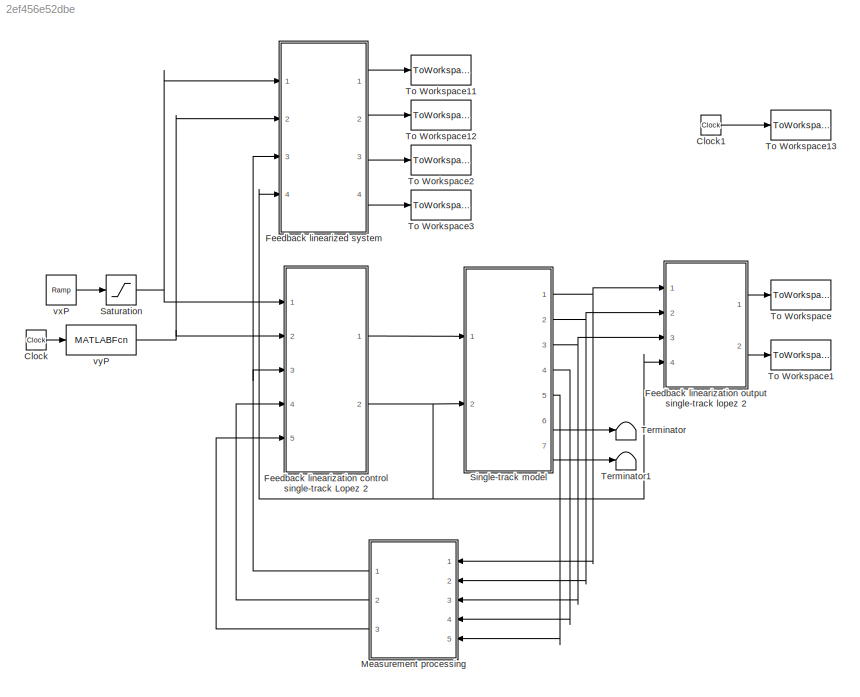
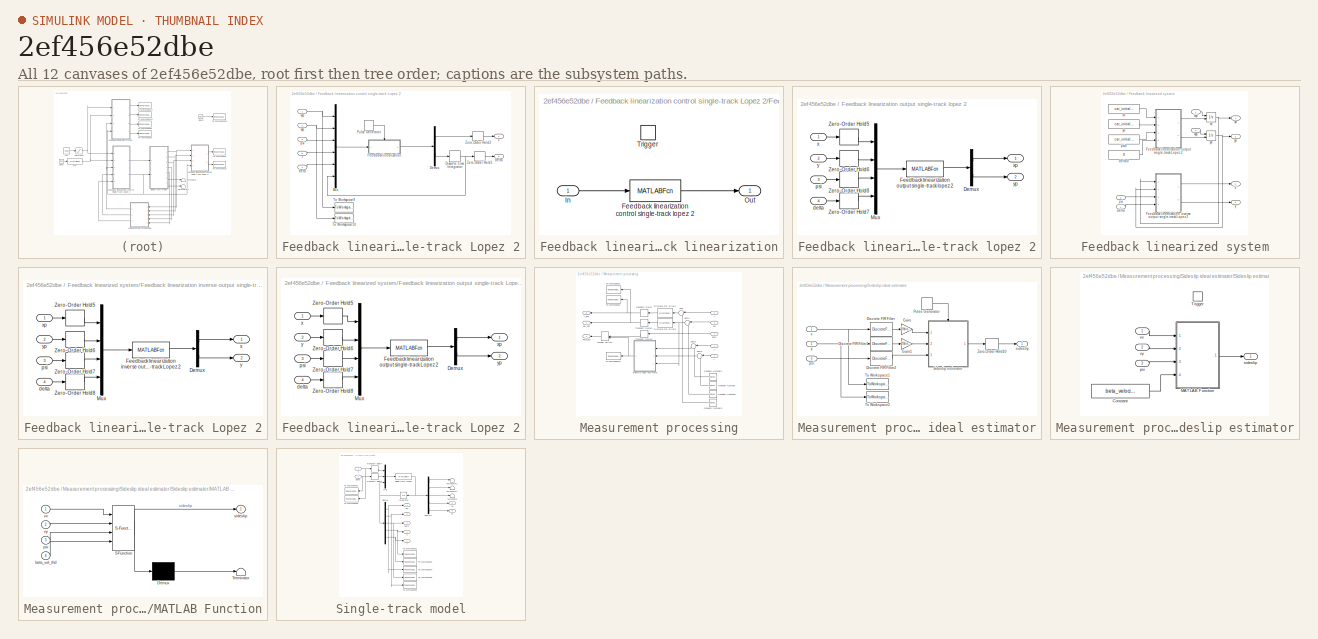
[diagram: thumbnail index - all 12 canvases of the model, root first then tree order]
MODEL slx_2ef456e52dbe
KIND model
CONFIG AbsTol = auto
CONFIG EnableMultiTasking = off
CONFIG FixedStep = auto
CONFIG MaxStep = auto
CONFIG MinStep = auto
CONFIG RelTol = 1e-3
CONFIG SampleTimeConstraint = Unconstrained
CONFIG Solver = VariableStepAuto
CONFIG SolverName = VariableStepAuto
CONFIG StartTime = 0.0
CONFIG StopTime = 10.0
BLOCK [Clock] Clock
  Decimation = 1
BLOCK [Clock] Clock1
BLOCK [SubSystem] Feedback linearization control single-track Lopez 2
  Ports = [5, 2]
  RequestExecContextInheritance = off
BLOCK [Demux] Feedback linearization control single-track Lopez 2/Demux
  DisplayOption = bar
  Outputs = 2
  Ports = [1, 2]
BLOCK [DiscreteIntegrator] Feedback linearization control single-track Lopez 2/Discrete-Time Integrator
  ICPrevOutput = DiscIntNeverNeededParam
  ICPrevScaledInput = DiscIntNeverNeededParam
  InitialConditionSetting = Auto
  Ports = [1, 1]
  SampleTime = Ts
BLOCK [SubSystem] Feedback linearization control single-track Lopez 2/Feedback linearization
  Ports = [1, 1, 0, 1]
  RequestExecContextInheritance = off
  TreatAsAtomicUnit = on
BLOCK [MATLABFcn] Feedback linearization control single-track Lopez 2/Feedback linearization/Feedback linearization control single-track lopez 2
  MATLABFcn = fblin_control_singletrack_lopez2(u(1),u(2),u(3),u(4),u(5),u(6),P_dist,car_parameters)
  OutputDimensions = 2
  Ports = [1, 1]
BLOCK [Inport] Feedback linearization control single-track Lopez 2/Feedback linearization/In
  IconDisplay = Port number
BLOCK [Outport] Feedback linearization control single-track Lopez 2/Feedback linearization/Out
  IconDisplay = Port number
BLOCK [TriggerPort] Feedback linearization control single-track Lopez 2/Feedback linearization/Trigger
  Ports = []
  StatesWhenEnabling = held
  VariantControl = Variant
BLOCK [Mux] Feedback linearization control single-track Lopez 2/Mux
  DisplayOption = bar
  Inputs = 6
  Ports = [6, 1]
BLOCK [DiscretePulseGenerator] Feedback linearization control single-track Lopez 2/Pulse Generator
  Period = Ts
  Ports = [0, 1]
  PulseType = Time based
  PulseWidth = 50
BLOCK [ToWorkspace] Feedback linearization control single-track Lopez 2/To Workspace10
  FixptAsFi = on
  MaxDataPoints = inf
  Ports = [1]
  SampleTime = meas_Ts
  Save2DSignal = 2-D array (concatenate along first dimension)
  VariableName = vyP
BLOCK [ToWorkspace] Feedback linearization control single-track Lopez 2/To Workspace9
  FixptAsFi = on
  MaxDataPoints = inf
  Ports = [1]
  SampleTime = meas_Ts
  Save2DSignal = 2-D array (concatenate along first dimension)
  VariableName = vxP
BLOCK [ZeroOrderHold] Feedback linearization control single-track Lopez 2/Zero-Order Hold1
  SampleTime = Ts
BLOCK [ZeroOrderHold] Feedback linearization control single-track Lopez 2/Zero-Order Hold3
  SampleTime = Ts
BLOCK [Inport] Feedback linearization control single-track Lopez 2/beta
  IconDisplay = Port number
  Port = 4
BLOCK [Outport] Feedback linearization control single-track Lopez 2/delta
  IconDisplay = Port number
  Port = 2
BLOCK [Inport] Feedback linearization control single-track Lopez 2/psi
  IconDisplay = Port number
  Port = 3
BLOCK [Inport] Feedback linearization control single-track Lopez 2/r
  IconDisplay = Port number
  Port = 5
BLOCK [Outport] Feedback linearization control single-track Lopez 2/v
  IconDisplay = Port number
BLOCK [Inport] Feedback linearization control single-track Lopez 2/vxp
  IconDisplay = Port number
BLOCK [Inport] Feedback linearization control single-track Lopez 2/vyp
  IconDisplay = Port number
  Port = 2
BLOCK [SubSystem] Feedback linearization output single-track lopez 2
  Ports = [4, 2]
  RequestExecContextInheritance = off
BLOCK [Demux] Feedback linearization output single-track lopez 2/Demux
  DisplayOption = bar
  Outputs = 2
  Ports = [1, 2]
BLOCK [MATLABFcn] Feedback linearization output single-track lopez 2/Feedback linearization output single-track lopez 2
  MATLABFcn = fblin_output_singletrack_lopez2(u(1),u(2),u(3),u(4),P_dist,car_parameters)
  OutputDimensions = 2
  Ports = [1, 1]
BLOCK [Mux] Feedback linearization output single-track lopez 2/Mux
  DisplayOption = bar
  Ports = [4, 1]
BLOCK [ZeroOrderHold] Feedback linearization output single-track lopez 2/Zero-Order Hold5
  SampleTime = fblin_Ts
BLOCK [ZeroOrderHold] Feedback linearization output single-track lopez 2/Zero-Order Hold6
  SampleTime = fblin_Ts
BLOCK [ZeroOrderHold] Feedback linearization output single-track lopez 2/Zero-Order Hold7
  SampleTime = fblin_Ts
BLOCK [ZeroOrderHold] Feedback linearization output single-track lopez 2/Zero-Order Hold8
  SampleTime = fblin_Ts
BLOCK [Inport] Feedback linearization output single-track lopez 2/delta
  IconDisplay = Port number
  Port = 4
BLOCK [Inport] Feedback linearization output single-track lopez 2/psi
  IconDisplay = Port number
  Port = 3
BLOCK [Inport] Feedback linearization output single-track lopez 2/x
  IconDisplay = Port number
BLOCK [Outport] Feedback linearization output single-track lopez 2/xp
  IconDisplay = Port number
BLOCK [Inport] Feedback linearization output single-track lopez 2/y
  IconDisplay = Port number
  Port = 2
BLOCK [Outport] Feedback linearization output single-track lopez 2/yp
  IconDisplay = Port number
  Port = 2
BLOCK [SubSystem] Feedback linearized system
  Ports = [4, 4]
  RequestExecContextInheritance = off
BLOCK [Integrator] Feedback linearized system/ xp 
  InitialCondition = car_state0(4)
  InitialConditionSource = external
  Ports = [2, 1]
BLOCK [Integrator] Feedback linearized system/ yp 
  InitialCondition = car_state0(5)
  InitialConditionSource = external
  Ports = [2, 1]
BLOCK [SubSystem] Feedback linearized system/Feedback linearization inverse output single-track Lopez 2
  Ports = [4, 2]
  RequestExecContextInheritance = off
BLOCK [Demux] Feedback linearized system/Feedback linearization inverse output single-track Lopez 2/Demux
  DisplayOption = bar
  Outputs = 2
  Ports = [1, 2]
BLOCK [MATLABFcn] Feedback linearized system/Feedback linearization inverse output single-track Lopez 2/Feedback linearization inverse output single-track Lopez 2
  MATLABFcn = fblin_outputInverse_singletrack_lopez2(u(1),u(2),u(3),u(4),P_dist,car_parameters)
  OutputDimensions = 2
  Ports = [1, 1]
BLOCK [Mux] Feedback linearized system/Feedback linearization inverse output single-track Lopez 2/Mux
  DisplayOption = bar
  Ports = [4, 1]
BLOCK [ZeroOrderHold] Feedback linearized system/Feedback linearization inverse output single-track Lopez 2/Zero-Order Hold5
  SampleTime = fblin_Ts
BLOCK [ZeroOrderHold] Feedback linearized system/Feedback linearization inverse output single-track Lopez 2/Zero-Order Hold6
  SampleTime = fblin_Ts
BLOCK [ZeroOrderHold] Feedback linearized system/Feedback linearization inverse output single-track Lopez 2/Zero-Order Hold7
  SampleTime = fblin_Ts
BLOCK [ZeroOrderHold] Feedback linearized system/Feedback linearization inverse output single-track Lopez 2/Zero-Order Hold8
  SampleTime = fblin_Ts
BLOCK [Inport] Feedback linearized system/Feedback linearization inverse output single-track Lopez 2/delta
  IconDisplay = Port number
  Port = 4
BLOCK [Inport] Feedback linearized system/Feedback linearization inverse output single-track Lopez 2/psi
  IconDisplay = Port number
  Port = 3
BLOCK [Outport] Feedback linearized system/Feedback linearization inverse output single-track Lopez 2/x
  IconDisplay = Port number
BLOCK [Inport] Feedback linearized system/Feedback linearization inverse output single-track Lopez 2/xp
  IconDisplay = Port number
BLOCK [Outport] Feedback linearized system/Feedback linearization inverse output single-track Lopez 2/y
  IconDisplay = Port number
  Port = 2
BLOCK [Inport] Feedback linearized system/Feedback linearization inverse output single-track Lopez 2/yp
  IconDisplay = Port number
  Port = 2
BLOCK [SubSystem] Feedback linearized system/Feedback linearization output single-track Lopez 2
  Ports = [4, 2]
  RequestExecContextInheritance = off
BLOCK [Demux] Feedback linearized system/Feedback linearization output single-track Lopez 2/Demux
  DisplayOption = bar
  Outputs = 2
  Ports = [1, 2]
BLOCK [MATLABFcn] Feedback linearized system/Feedback linearization output single-track Lopez 2/Feedback linearization output single-track Lopez 2
  MATLABFcn = fblin_output_singletrack_lopez2(u(1),u(2),u(3),u(4),P_dist,car_parameters)
  OutputDimensions = 2
  Ports = [1, 1]
BLOCK [Mux] Feedback linearized system/Feedback linearization output single-track Lopez 2/Mux
  DisplayOption = bar
  Ports = [4, 1]
BLOCK [ZeroOrderHold] Feedback linearized system/Feedback linearization output single-track Lopez 2/Zero-Order Hold5
  SampleTime = fblin_Ts
BLOCK [ZeroOrderHold] Feedback linearized system/Feedback linearization output single-track Lopez 2/Zero-Order Hold6
  SampleTime = fblin_Ts
BLOCK [ZeroOrderHold] Feedback linearized system/Feedback linearization output single-track Lopez 2/Zero-Order Hold7
  SampleTime = fblin_Ts
BLOCK [ZeroOrderHold] Feedback linearized system/Feedback linearization output single-track Lopez 2/Zero-Order Hold8
  SampleTime = fblin_Ts
BLOCK [Inport] Feedback linearized system/Feedback linearization output single-track Lopez 2/delta
  IconDisplay = Port number
  Port = 4
BLOCK [Inport] Feedback linearized system/Feedback linearization output single-track Lopez 2/psi
  IconDisplay = Port number
  Port = 3
BLOCK [Inport] Feedback linearized system/Feedback linearization output single-track Lopez 2/x
  IconDisplay = Port number
BLOCK [Outport] Feedback linearized system/Feedback linearization output single-track Lopez 2/xp
  IconDisplay = Port number
BLOCK [Inport] Feedback linearized system/Feedback linearization output single-track Lopez 2/y
  IconDisplay = Port number
  Port = 2
BLOCK [Outport] Feedback linearized system/Feedback linearization output single-track Lopez 2/yp
  IconDisplay = Port number
  Port = 2
BLOCK [Inport] Feedback linearized system/delta
  IconDisplay = Port number
  Port = 4
BLOCK [Constant] Feedback linearized system/delta0
  Value = 0
BLOCK [Inport] Feedback linearized system/psi
  IconDisplay = Port number
  Port = 3
BLOCK [Constant] Feedback linearized system/psi0
  Value = car_initial_state(1)
BLOCK [Inport] Feedback linearized system/vxp
  IconDisplay = Port number
BLOCK [Inport] Feedback linearized system/vyp
  IconDisplay = Port number
  Port = 2
BLOCK [Outport] Feedback linearized system/x
  IconDisplay = Port number
  Port = 3
BLOCK [Constant] Feedback linearized system/x0
  Value = car_initial_state(4)
BLOCK [Outport] Feedback linearized system/xp
  IconDisplay = Port number
BLOCK [Outport] Feedback linearized system/y
  IconDisplay = Port number
  Port = 4
BLOCK [Constant] Feedback linearized system/y0
  Value = car_initial_state(5)
BLOCK [Outport] Feedback linearized system/yp
  IconDisplay = Port number
  Port = 2
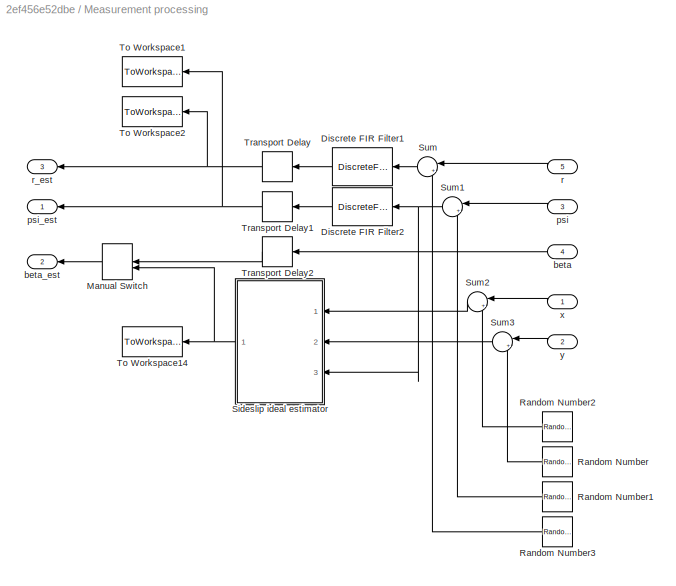
BLOCK [SubSystem] Measurement processing
  Ports = [5, 3]
  RequestExecContextInheritance = off
BLOCK [DiscreteFir] Measurement processing/Discrete FIR Filter1
  Coefficients = psi_fir
  InputPortMap = u0
  OutputPortMap = o0
  Ports = [1, 1]
  SampleTime = fblin_Ts
BLOCK [DiscreteFir] Measurement processing/Discrete FIR Filter2
  Coefficients = psi_fir
  InputPortMap = u0
  OutputPortMap = o0
  Ports = [1, 1]
  SampleTime = fblin_Ts
BLOCK [ManualSwitch] Measurement processing/Manual Switch
  CurrentSetting = 0
BLOCK [RandomNumber] Measurement processing/Random Number
  Seed = 1
  Variance = xy_noiseVar
BLOCK [RandomNumber] Measurement processing/Random Number1
  Seed = 2
  Variance = psi_noiseVar
BLOCK [RandomNumber] Measurement processing/Random Number2
  Variance = xy_noiseVar
BLOCK [RandomNumber] Measurement processing/Random Number3
  Seed = 3
  Variance = r_noiseVar
BLOCK [SubSystem] Measurement processing/Sideslip ideal estimator
  Ports = [3, 1]
  RequestExecContextInheritance = off
BLOCK [DiscreteFir] Measurement processing/Sideslip ideal estimator/Discrete FIR Filter
  Coefficients = vel_fir
  InputPortMap = u0
  OutputPortMap = o0
  Ports = [1, 1]
  SampleTime = fblin_Ts
BLOCK [DiscreteFir] Measurement processing/Sideslip ideal estimator/Discrete FIR Filter1
  Coefficients = vel_fir
  InputPortMap = u0
  OutputPortMap = o0
  Ports = [1, 1]
  SampleTime = fblin_Ts
BLOCK [DiscreteFir] Measurement processing/Sideslip ideal estimator/Discrete FIR Filter2
  Coefficients = psi_fir
  InputPortMap = u0
  OutputPortMap = o0
  Ports = [1, 1]
  SampleTime = fblin_Ts
BLOCK [Gain] Measurement processing/Sideslip ideal estimator/Gain
  Gain = 1/fblin_Ts
  OutDataTypeStr = Inherit: Inherit via internal rule
  ParamDataTypeStr = Inherit: Inherit via internal rule
  SaturateOnIntegerOverflow = off
BLOCK [Gain] Measurement processing/Sideslip ideal estimator/Gain1
  Gain = 1/fblin_Ts
  OutDataTypeStr = Inherit: Inherit via internal rule
  ParamDataTypeStr = Inherit: Inherit via internal rule
  SaturateOnIntegerOverflow = off
BLOCK [DiscretePulseGenerator] Measurement processing/Sideslip ideal estimator/Pulse Generator
  Period = fblin_Ts
  Ports = [0, 1]
  PulseType = Time based
  PulseWidth = 50
BLOCK [SubSystem] Measurement processing/Sideslip ideal estimator/Sideslip estimator
  Ports = [3, 1, 0, 1]
  RequestExecContextInheritance = off
  TreatAsAtomicUnit = on
BLOCK [Constant] Measurement processing/Sideslip ideal estimator/Sideslip estimator/Constant
  Value = beta_velocity_threshold
BLOCK [SubSystem] Measurement processing/Sideslip ideal estimator/Sideslip estimator/MATLAB Function
  ErrorFcn = Stateflow.Translate.translate
  PermitHierarchicalResolution = ExplicitOnly
  Ports = [4, 1]
  RequestExecContextInheritance = off
  SFBlockType = MATLAB Function
  TreatAsAtomicUnit = on
BLOCK [Demux] Measurement processing/Sideslip ideal estimator/Sideslip estimator/MATLAB Function/ Demux 
  Outputs = 1
  Ports = [1, 1]
BLOCK [S-Function] Measurement processing/Sideslip ideal estimator/Sideslip estimator/MATLAB Function/ SFunction 
  EnableBusSupport = on
  FunctionName = sf_sfun
  PortCounts = [4 2]
  Ports = [4, 2]
  SFcnIsStateOwnerBlock = off
  SFunctionDeploymentMode = off
  Tag = Stateflow S-Function fblin_singletrack_lopez2 1
BLOCK [Terminator] Measurement processing/Sideslip ideal estimator/Sideslip estimator/MATLAB Function/ Terminator 
BLOCK [Inport] Measurement processing/Sideslip ideal estimator/Sideslip estimator/MATLAB Function/beta_vel_thd
  IconDisplay = Port number
  Port = 4
BLOCK [Inport] Measurement processing/Sideslip ideal estimator/Sideslip estimator/MATLAB Function/psi
  IconDisplay = Port number
  Port = 3
BLOCK [Outport] Measurement processing/Sideslip ideal estimator/Sideslip estimator/MATLAB Function/sideslip
  IconDisplay = Port number
BLOCK [Inport] Measurement processing/Sideslip ideal estimator/Sideslip estimator/MATLAB Function/vx
  IconDisplay = Port number
BLOCK [Inport] Measurement processing/Sideslip ideal estimator/Sideslip estimator/MATLAB Function/vy
  IconDisplay = Port number
  Port = 2
BLOCK [TriggerPort] Measurement processing/Sideslip ideal estimator/Sideslip estimator/Trigger
  Ports = []
  StatesWhenEnabling = held
  VariantControl = Variant
BLOCK [Inport] Measurement processing/Sideslip ideal estimator/Sideslip estimator/psi
  IconDisplay = Port number
  Port = 3
BLOCK [Outport] Measurement processing/Sideslip ideal estimator/Sideslip estimator/sideslip
  IconDisplay = Port number
BLOCK [Inport] Measurement processing/Sideslip ideal estimator/Sideslip estimator/vx
  IconDisplay = Port number
BLOCK [Inport] Measurement processing/Sideslip ideal estimator/Sideslip estimator/vy
  IconDisplay = Port number
  Port = 2
BLOCK [ToWorkspace] Measurement processing/Sideslip ideal estimator/To Workspace1
  FixptAsFi = on
  MaxDataPoints = inf
  Ports = [1]
  SampleTime = meas_Ts
  Save2DSignal = 2-D array (concatenate along first dimension)
  VariableName = x_noise
BLOCK [ToWorkspace] Measurement processing/Sideslip ideal estimator/To Workspace2
  FixptAsFi = on
  MaxDataPoints = inf
  Ports = [1]
  SampleTime = meas_Ts
  Save2DSignal = 2-D array (concatenate along first dimension)
  VariableName = y_noise
BLOCK [ZeroOrderHold] Measurement processing/Sideslip ideal estimator/Zero-Order Hold10
  SampleTime = fblin_Ts
BLOCK [Inport] Measurement processing/Sideslip ideal estimator/psi
  IconDisplay = Port number
  Port = 3
BLOCK [Outport] Measurement processing/Sideslip ideal estimator/sideslip
  IconDisplay = Port number
BLOCK [Inport] Measurement processing/Sideslip ideal estimator/x
  IconDisplay = Port number
BLOCK [Inport] Measurement processing/Sideslip ideal estimator/y
  IconDisplay = Port number
  Port = 2
BLOCK [Sum] Measurement processing/Sum
  IconShape = round
  InputSameDT = off
  Inputs = |++
  OutDataTypeStr = Inherit: Inherit via internal rule
  Ports = [2, 1]
  SaturateOnIntegerOverflow = off
BLOCK [Sum] Measurement processing/Sum1
  IconShape = round
  InputSameDT = off
  Inputs = |++
  OutDataTypeStr = Inherit: Inherit via internal rule
  Ports = [2, 1]
  SaturateOnIntegerOverflow = off
BLOCK [Sum] Measurement processing/Sum2
  IconShape = round
  InputSameDT = off
  Inputs = |++
  OutDataTypeStr = Inherit: Inherit via internal rule
  Ports = [2, 1]
  SaturateOnIntegerOverflow = off
BLOCK [Sum] Measurement processing/Sum3
  IconShape = round
  InputSameDT = off
  Inputs = |++
  OutDataTypeStr = Inherit: Inherit via internal rule
  Ports = [2, 1]
  SaturateOnIntegerOverflow = off
BLOCK [ToWorkspace] Measurement processing/To Workspace1
  FixptAsFi = on
  MaxDataPoints = inf
  Ports = [1]
  SampleTime = meas_Ts
  Save2DSignal = 2-D array (concatenate along first dimension)
  VariableName = psi_est
BLOCK [ToWorkspace] Measurement processing/To Workspace14
  FixptAsFi = on
  MaxDataPoints = inf
  Ports = [1]
  SampleTime = meas_Ts
  Save2DSignal = 2-D array (concatenate along first dimension)
  VariableName = beta_est
BLOCK [ToWorkspace] Measurement processing/To Workspace2
  FixptAsFi = on
  MaxDataPoints = inf
  Ports = [1]
  SampleTime = meas_Ts
  Save2DSignal = 2-D array (concatenate along first dimension)
  VariableName = r_est
BLOCK [TransportDelay] Measurement processing/Transport Delay
  Commented = through
  DelayTime = 0.02
  Ports = [1, 1]
BLOCK [TransportDelay] Measurement processing/Transport Delay1
  Commented = through
  DelayTime = 0.02
  Ports = [1, 1]
BLOCK [TransportDelay] Measurement processing/Transport Delay2
  Commented = through
  DelayTime = 0.02
  Ports = [1, 1]
BLOCK [Inport] Measurement processing/beta
  IconDisplay = Port number
  Port = 4
BLOCK [Outport] Measurement processing/beta_est
  IconDisplay = Port number
  Port = 2
BLOCK [Inport] Measurement processing/psi
  IconDisplay = Port number
  Port = 3
BLOCK [Outport] Measurement processing/psi_est
  IconDisplay = Port number
BLOCK [Inport] Measurement processing/r
  IconDisplay = Port number
  Port = 5
BLOCK [Outport] Measurement processing/r_est
  IconDisplay = Port number
  Port = 3
BLOCK [Inport] Measurement processing/x
  IconDisplay = Port number
BLOCK [Inport] Measurement processing/y
  IconDisplay = Port number
  Port = 2
BLOCK [Saturate] Saturation
  InputPortMap = u0
  LowerLimit = 0.0
  Ports = [1, 1]
  UpperLimit = 0.4
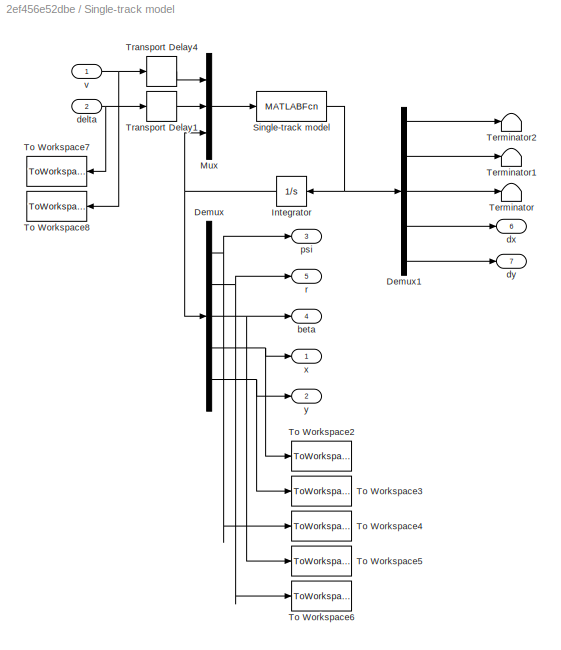
BLOCK [SubSystem] Single-track model
  Ports = [2, 7]
  RequestExecContextInheritance = off
BLOCK [Demux] Single-track model/Demux
  DisplayOption = bar
  Outputs = 5
  Ports = [1, 5]
BLOCK [Demux] Single-track model/Demux1
  DisplayOption = bar
  Outputs = 5
  Ports = [1, 5]
BLOCK [Integrator] Single-track model/Integrator
  InitialCondition = car_state0
  Ports = [1, 1]
BLOCK [Mux] Single-track model/Mux
  DisplayOption = bar
  Inputs = 3
  Ports = [3, 1]
BLOCK [MATLABFcn] Single-track model/Single-track model
  MATLABFcn = singleTrack_model(u(1:2),u(3:7),car_parameters)
  OutputDimensions = 5
  Ports = [1, 1]
BLOCK [Terminator] Single-track model/Terminator
BLOCK [Terminator] Single-track model/Terminator1
BLOCK [Terminator] Single-track model/Terminator2
BLOCK [ToWorkspace] Single-track model/To Workspace2
  FixptAsFi = on
  MaxDataPoints = inf
  Ports = [1]
  SampleTime = meas_Ts
  Save2DSignal = 2-D array (concatenate along first dimension)
  VariableName = x
BLOCK [ToWorkspace] Single-track model/To Workspace3
  FixptAsFi = on
  MaxDataPoints = inf
  Ports = [1]
  SampleTime = meas_Ts
  Save2DSignal = 2-D array (concatenate along first dimension)
  VariableName = y
BLOCK [ToWorkspace] Single-track model/To Workspace4
  FixptAsFi = on
  MaxDataPoints = inf
  Ports = [1]
  SampleTime = meas_Ts
  Save2DSignal = 2-D array (concatenate along first dimension)
  VariableName = psi
BLOCK [ToWorkspace] Single-track model/To Workspace5
  FixptAsFi = on
  MaxDataPoints = inf
  Ports = [1]
  SampleTime = meas_Ts
  Save2DSignal = 2-D array (concatenate along first dimension)
  VariableName = beta
BLOCK [ToWorkspace] Single-track model/To Workspace6
  FixptAsFi = on
  MaxDataPoints = inf
  Ports = [1]
  SampleTime = meas_Ts
  Save2DSignal = 2-D array (concatenate along first dimension)
  VariableName = r
BLOCK [ToWorkspace] Single-track model/To Workspace7
  FixptAsFi = on
  MaxDataPoints = inf
  Ports = [1]
  SampleTime = meas_Ts
  Save2DSignal = 2-D array (concatenate along first dimension)
  VariableName = delta
BLOCK [ToWorkspace] Single-track model/To Workspace8
  FixptAsFi = on
  MaxDataPoints = inf
  Ports = [1]
  SampleTime = meas_Ts
  Save2DSignal = 2-D array (concatenate along first dimension)
  VariableName = v
BLOCK [TransportDelay] Single-track model/Transport Delay1
  DelayTime = actuation_delay
  Ports = [1, 1]
BLOCK [TransportDelay] Single-track model/Transport Delay4
  DelayTime = actuation_delay
  Ports = [1, 1]
BLOCK [Outport] Single-track model/beta
  IconDisplay = Port number
  Port = 4
BLOCK [Inport] Single-track model/delta
  IconDisplay = Port number
  Port = 2
BLOCK [Outport] Single-track model/dx
  IconDisplay = Port number
  Port = 6
BLOCK [Outport] Single-track model/dy
  IconDisplay = Port number
  Port = 7
BLOCK [Outport] Single-track model/psi
  IconDisplay = Port number
  Port = 3
BLOCK [Outport] Single-track model/r
  IconDisplay = Port number
  Port = 5
BLOCK [Inport] Single-track model/v
  IconDisplay = Port number
BLOCK [Outport] Single-track model/x
  IconDisplay = Port number
BLOCK [Outport] Single-track model/y
  IconDisplay = Port number
  Port = 2
BLOCK [Terminator] Terminator
BLOCK [Terminator] Terminator1
BLOCK [ToWorkspace] To Workspace
  FixptAsFi = on
  MaxDataPoints = inf
  Ports = [1]
  SampleTime = meas_Ts
  Save2DSignal = 2-D array (concatenate along first dimension)
  VariableName = xP
BLOCK [ToWorkspace] To Workspace1
  FixptAsFi = on
  MaxDataPoints = inf
  Ports = [1]
  SampleTime = meas_Ts
  Save2DSignal = 2-D array (concatenate along first dimension)
  VariableName = yP
BLOCK [ToWorkspace] To Workspace11
  FixptAsFi = on
  MaxDataPoints = inf
  Ports = [1]
  SampleTime = meas_Ts
  Save2DSignal = 2-D array (concatenate along first dimension)
  VariableName = xP_id
BLOCK [ToWorkspace] To Workspace12
  FixptAsFi = on
  MaxDataPoints = inf
  Ports = [1]
  SampleTime = meas_Ts
  Save2DSignal = 2-D array (concatenate along first dimension)
  VariableName = yP_id
BLOCK [ToWorkspace] To Workspace13
  FixptAsFi = on
  MaxDataPoints = inf
  Ports = [1]
  SampleTime = meas_Ts
  Save2DSignal = 2-D array (concatenate along first dimension)
  VariableName = t
BLOCK [ToWorkspace] To Workspace2
  FixptAsFi = on
  MaxDataPoints = inf
  Ports = [1]
  SampleTime = meas_Ts
  Save2DSignal = 2-D array (concatenate along first dimension)
  VariableName = x_id
BLOCK [ToWorkspace] To Workspace3
  FixptAsFi = on
  MaxDataPoints = inf
  Ports = [1]
  SampleTime = meas_Ts
  Save2DSignal = 2-D array (concatenate along first dimension)
  VariableName = y_id
BLOCK [Reference] vxP  REF=simulink/Sources/Ramp
  Ports = [0, 1]
  SourceBlock = simulink/Sources/Ramp
  SourceProductBaseCode = SL
  SourceProductName = Simulink
  SourceType = Ramp
BLOCK [MATLABFcn] vyP
  MATLABFcn = 0.5*sigmf(u,[20 1])
  Ports = [1, 1]
LINE Clock1:1 -> To Workspace13:1
LINE Clock:1 -> vyP:1
LINE Feedback linearization control single-track Lopez 2/Demux:1 -> Feedback linearization control single-track Lopez 2/Zero-Order Hold3:1
LINE Feedback linearization control single-track Lopez 2/Demux:2 -> Feedback linearization control single-track Lopez 2/Discrete-Time Integrator:1
NET Feedback linearization control single-track Lopez 2/Discrete-Time Integrator:1 -> Feedback linearization control single-track Lopez 2/Mux:6, Feedback linearization control single-track Lopez 2/Zero-Order Hold1:1
LINE Feedback linearization control single-track Lopez 2/Feedback linearization/Feedback linearization control single-track lopez 2:1 -> Feedback linearization control single-track Lopez 2/Feedback linearization/Out:1
LINE Feedback linearization control single-track Lopez 2/Feedback linearization/In:1 -> Feedback linearization control single-track Lopez 2/Feedback linearization/Feedback linearization control single-track lopez 2:1
LINE Feedback linearization control single-track Lopez 2/Feedback linearization:1 -> Feedback linearization control single-track Lopez 2/Demux:1
LINE Feedback linearization control single-track Lopez 2/Mux:1 -> Feedback linearization control single-track Lopez 2/Feedback linearization:1
LINE Feedback linearization control single-track Lopez 2/Pulse Generator:1 -> Feedback linearization control single-track Lopez 2/Feedback linearization:trigger
LINE Feedback linearization control single-track Lopez 2/Zero-Order Hold1:1 -> Feedback linearization control single-track Lopez 2/delta:1
LINE Feedback linearization control single-track Lopez 2/Zero-Order Hold3:1 -> Feedback linearization control single-track Lopez 2/v:1
LINE Feedback linearization control single-track Lopez 2/beta:1 -> Feedback linearization control single-track Lopez 2/Mux:5
LINE Feedback linearization control single-track Lopez 2/psi:1 -> Feedback linearization control single-track Lopez 2/Mux:3
LINE Feedback linearization control single-track Lopez 2/r:1 -> Feedback linearization control single-track Lopez 2/Mux:4
NET Feedback linearization control single-track Lopez 2/vxp:1 -> Feedback linearization control single-track Lopez 2/Mux:1, Feedback linearization control single-track Lopez 2/To Workspace9:1
NET Feedback linearization control single-track Lopez 2/vyp:1 -> Feedback linearization control single-track Lopez 2/Mux:2, Feedback linearization control single-track Lopez 2/To Workspace10:1
LINE Feedback linearization control single-track Lopez 2:1 -> Single-track model:1
NET Feedback linearization control single-track Lopez 2:2 -> Feedback linearization output single-track lopez 2:4, Feedback linearized system:4, Single-track model:2
LINE Feedback linearization output single-track lopez 2/Demux:1 -> Feedback linearization output single-track lopez 2/xp:1
LINE Feedback linearization output single-track lopez 2/Demux:2 -> Feedback linearization output single-track lopez 2/yp:1
LINE Feedback linearization output single-track lopez 2/Feedback linearization output single-track lopez 2:1 -> Feedback linearization output single-track lopez 2/Demux:1
LINE Feedback linearization output single-track lopez 2/Mux:1 -> Feedback linearization output single-track lopez 2/Feedback linearization output single-track lopez 2:1
LINE Feedback linearization output single-track lopez 2/Zero-Order Hold5:1 -> Feedback linearization output single-track lopez 2/Mux:1
LINE Feedback linearization output single-track lopez 2/Zero-Order Hold6:1 -> Feedback linearization output single-track lopez 2/Mux:2
LINE Feedback linearization output single-track lopez 2/Zero-Order Hold7:1 -> Feedback linearization output single-track lopez 2/Mux:4
LINE Feedback linearization output single-track lopez 2/Zero-Order Hold8:1 -> Feedback linearization output single-track lopez 2/Mux:3
LINE Feedback linearization output single-track lopez 2/delta:1 -> Feedback linearization output single-track lopez 2/Zero-Order Hold7:1
LINE Feedback linearization output single-track lopez 2/psi:1 -> Feedback linearization output single-track lopez 2/Zero-Order Hold8:1
LINE Feedback linearization output single-track lopez 2/x:1 -> Feedback linearization output single-track lopez 2/Zero-Order Hold5:1
LINE Feedback linearization output single-track lopez 2/y:1 -> Feedback linearization output single-track lopez 2/Zero-Order Hold6:1
LINE Feedback linearization output single-track lopez 2:1 -> To Workspace:1
LINE Feedback linearization output single-track lopez 2:2 -> To Workspace1:1
NET Feedback linearized system/ xp :1 -> Feedback linearized system/Feedback linearization inverse output single-track Lopez 2:1, Feedback linearized system/xp:1
NET Feedback linearized system/ yp :1 -> Feedback linearized system/Feedback linearization inverse output single-track Lopez 2:2, Feedback linearized system/yp:1
LINE Feedback linearized system/Feedback linearization inverse output single-track Lopez 2/Demux:1 -> Feedback linearized system/Feedback linearization inverse output single-track Lopez 2/x:1
LINE Feedback linearized system/Feedback linearization inverse output single-track Lopez 2/Demux:2 -> Feedback linearized system/Feedback linearization inverse output single-track Lopez 2/y:1
LINE Feedback linearized system/Feedback linearization inverse output single-track Lopez 2/Feedback linearization inverse output single-track Lopez 2:1 -> Feedback linearized system/Feedback linearization inverse output single-track Lopez 2/Demux:1
LINE Feedback linearized system/Feedback linearization inverse output single-track Lopez 2/Mux:1 -> Feedback linearized system/Feedback linearization inverse output single-track Lopez 2/Feedback linearization inverse output single-track Lopez 2:1
LINE Feedback linearized system/Feedback linearization inverse output single-track Lopez 2/Zero-Order Hold5:1 -> Feedback linearized system/Feedback linearization inverse output single-track Lopez 2/Mux:1
LINE Feedback linearized system/Feedback linearization inverse output single-track Lopez 2/Zero-Order Hold6:1 -> Feedback linearized system/Feedback linearization inverse output single-track Lopez 2/Mux:2
LINE Feedback linearized system/Feedback linearization inverse output single-track Lopez 2/Zero-Order Hold7:1 -> Feedback linearized system/Feedback linearization inverse output single-track Lopez 2/Mux:3
LINE Feedback linearized system/Feedback linearization inverse output single-track Lopez 2/Zero-Order Hold8:1 -> Feedback linearized system/Feedback linearization inverse output single-track Lopez 2/Mux:4
LINE Feedback linearized system/Feedback linearization inverse output single-track Lopez 2/delta:1 -> Feedback linearized system/Feedback linearization inverse output single-track Lopez 2/Zero-Order Hold8:1
LINE Feedback linearized system/Feedback linearization inverse output single-track Lopez 2/psi:1 -> Feedback linearized system/Feedback linearization inverse output single-track Lopez 2/Zero-Order Hold7:1
LINE Feedback linearized system/Feedback linearization inverse output single-track Lopez 2/xp:1 -> Feedback linearized system/Feedback linearization inverse output single-track Lopez 2/Zero-Order Hold5:1
LINE Feedback linearized system/Feedback linearization inverse output single-track Lopez 2/yp:1 -> Feedback linearized system/Feedback linearization inverse output single-track Lopez 2/Zero-Order Hold6:1
LINE Feedback linearized system/Feedback linearization inverse output single-track Lopez 2:1 -> Feedback linearized system/x:1
LINE Feedback linearized system/Feedback linearization inverse output single-track Lopez 2:2 -> Feedback linearized system/y:1
LINE Feedback linearized system/Feedback linearization output single-track Lopez 2/Demux:1 -> Feedback linearized system/Feedback linearization output single-track Lopez 2/xp:1
LINE Feedback linearized system/Feedback linearization output single-track Lopez 2/Demux:2 -> Feedback linearized system/Feedback linearization output single-track Lopez 2/yp:1
LINE Feedback linearized system/Feedback linearization output single-track Lopez 2/Feedback linearization output single-track Lopez 2:1 -> Feedback linearized system/Feedback linearization output single-track Lopez 2/Demux:1
LINE Feedback linearized system/Feedback linearization output single-track Lopez 2/Mux:1 -> Feedback linearized system/Feedback linearization output single-track Lopez 2/Feedback linearization output single-track Lopez 2:1
LINE Feedback linearized system/Feedback linearization output single-track Lopez 2/Zero-Order Hold5:1 -> Feedback linearized system/Feedback linearization output single-track Lopez 2/Mux:1
LINE Feedback linearized system/Feedback linearization output single-track Lopez 2/Zero-Order Hold6:1 -> Feedback linearized system/Feedback linearization output single-track Lopez 2/Mux:2
LINE Feedback linearized system/Feedback linearization output single-track Lopez 2/Zero-Order Hold7:1 -> Feedback linearized system/Feedback linearization output single-track Lopez 2/Mux:3
LINE Feedback linearized system/Feedback linearization output single-track Lopez 2/Zero-Order Hold8:1 -> Feedback linearized system/Feedback linearization output single-track Lopez 2/Mux:4
LINE Feedback linearized system/Feedback linearization output single-track Lopez 2/delta:1 -> Feedback linearized system/Feedback linearization output single-track Lopez 2/Zero-Order Hold8:1
LINE Feedback linearized system/Feedback linearization output single-track Lopez 2/psi:1 -> Feedback linearized system/Feedback linearization output single-track Lopez 2/Zero-Order Hold7:1
LINE Feedback linearized system/Feedback linearization output single-track Lopez 2/x:1 -> Feedback linearized system/Feedback linearization output single-track Lopez 2/Zero-Order Hold5:1
LINE Feedback linearized system/Feedback linearization output single-track Lopez 2/y:1 -> Feedback linearized system/Feedback linearization output single-track Lopez 2/Zero-Order Hold6:1
LINE Feedback linearized system/Feedback linearization output single-track Lopez 2:1 -> Feedback linearized system/ xp :2
LINE Feedback linearized system/Feedback linearization output single-track Lopez 2:2 -> Feedback linearized system/ yp :2
LINE Feedback linearized system/delta0:1 -> Feedback linearized system/Feedback linearization output single-track Lopez 2:4
LINE Feedback linearized system/delta:1 -> Feedback linearized system/Feedback linearization inverse output single-track Lopez 2:4
LINE Feedback linearized system/psi0:1 -> Feedback linearized system/Feedback linearization output single-track Lopez 2:3
LINE Feedback linearized system/psi:1 -> Feedback linearized system/Feedback linearization inverse output single-track Lopez 2:3
LINE Feedback linearized system/vxp:1 -> Feedback linearized system/ xp :1
LINE Feedback linearized system/vyp:1 -> Feedback linearized system/ yp :1
LINE Feedback linearized system/x0:1 -> Feedback linearized system/Feedback linearization output single-track Lopez 2:1
LINE Feedback linearized system/y0:1 -> Feedback linearized system/Feedback linearization output single-track Lopez 2:2
LINE Feedback linearized system:1 -> To Workspace11:1
LINE Feedback linearized system:2 -> To Workspace12:1
LINE Feedback linearized system:3 -> To Workspace2:1
LINE Feedback linearized system:4 -> To Workspace3:1
LINE Measurement processing/Discrete FIR Filter1:1 -> Measurement processing/Transport Delay:1
LINE Measurement processing/Discrete FIR Filter2:1 -> Measurement processing/Transport Delay1:1
LINE Measurement processing/Manual Switch:1 -> Measurement processing/beta_est:1
LINE Measurement processing/Random Number1:1 -> Measurement processing/Sum1:2
LINE Measurement processing/Random Number2:1 -> Measurement processing/Sum2:2
LINE Measurement processing/Random Number3:1 -> Measurement processing/Sum:2
LINE Measurement processing/Random Number:1 -> Measurement processing/Sum3:2
LINE Measurement processing/Sideslip ideal estimator/Discrete FIR Filter1:1 -> Measurement processing/Sideslip ideal estimator/Gain1:1
LINE Measurement processing/Sideslip ideal estimator/Discrete FIR Filter2:1 -> Measurement processing/Sideslip ideal estimator/Sideslip estimator:3
LINE Measurement processing/Sideslip ideal estimator/Discrete FIR Filter:1 -> Measurement processing/Sideslip ideal estimator/Gain:1
LINE Measurement processing/Sideslip ideal estimator/Gain1:1 -> Measurement processing/Sideslip ideal estimator/Sideslip estimator:2
LINE Measurement processing/Sideslip ideal estimator/Gain:1 -> Measurement processing/Sideslip ideal estimator/Sideslip estimator:1
LINE Measurement processing/Sideslip ideal estimator/Pulse Generator:1 -> Measurement processing/Sideslip ideal estimator/Sideslip estimator:trigger
LINE Measurement processing/Sideslip ideal estimator/Sideslip estimator/Constant:1 -> Measurement processing/Sideslip ideal estimator/Sideslip estimator/MATLAB Function:4
LINE Measurement processing/Sideslip ideal estimator/Sideslip estimator/MATLAB Function:1 -> Measurement processing/Sideslip ideal estimator/Sideslip estimator/sideslip:1
LINE Measurement processing/Sideslip ideal estimator/Sideslip estimator/psi:1 -> Measurement processing/Sideslip ideal estimator/Sideslip estimator/MATLAB Function:3
LINE Measurement processing/Sideslip ideal estimator/Sideslip estimator/vx:1 -> Measurement processing/Sideslip ideal estimator/Sideslip estimator/MATLAB Function:1
LINE Measurement processing/Sideslip ideal estimator/Sideslip estimator/vy:1 -> Measurement processing/Sideslip ideal estimator/Sideslip estimator/MATLAB Function:2
LINE Measurement processing/Sideslip ideal estimator/Sideslip estimator:1 -> Measurement processing/Sideslip ideal estimator/Zero-Order Hold10:1
LINE Measurement processing/Sideslip ideal estimator/Zero-Order Hold10:1 -> Measurement processing/Sideslip ideal estimator/sideslip:1
LINE Measurement processing/Sideslip ideal estimator/psi:1 -> Measurement processing/Sideslip ideal estimator/Discrete FIR Filter2:1
NET Measurement processing/Sideslip ideal estimator/x:1 -> Measurement processing/Sideslip ideal estimator/Discrete FIR Filter:1, Measurement processing/Sideslip ideal estimator/To Workspace1:1
NET Measurement processing/Sideslip ideal estimator/y:1 -> Measurement processing/Sideslip ideal estimator/Discrete FIR Filter1:1, Measurement processing/Sideslip ideal estimator/To Workspace2:1
NET Measurement processing/Sideslip ideal estimator:1 -> Measurement processing/Manual Switch:2, Measurement processing/To Workspace14:1
NET Measurement processing/Sum1:1 -> Measurement processing/Discrete FIR Filter2:1, Measurement processing/Sideslip ideal estimator:3
LINE Measurement processing/Sum2:1 -> Measurement processing/Sideslip ideal estimator:1
LINE Measurement processing/Sum3:1 -> Measurement processing/Sideslip ideal estimator:2
LINE Measurement processing/Sum:1 -> Measurement processing/Discrete FIR Filter1:1
NET Measurement processing/Transport Delay1:1 -> Measurement processing/To Workspace1:1, Measurement processing/psi_est:1
LINE Measurement processing/Transport Delay2:1 -> Measurement processing/Manual Switch:1
NET Measurement processing/Transport Delay:1 -> Measurement processing/To Workspace2:1, Measurement processing/r_est:1
LINE Measurement processing/beta:1 -> Measurement processing/Transport Delay2:1
LINE Measurement processing/psi:1 -> Measurement processing/Sum1:1
LINE Measurement processing/r:1 -> Measurement processing/Sum:1
LINE Measurement processing/x:1 -> Measurement processing/Sum2:1
LINE Measurement processing/y:1 -> Measurement processing/Sum3:1
NET Measurement processing:1 -> Feedback linearization control single-track Lopez 2:3, Feedback linearized system:3
LINE Measurement processing:2 -> Feedback linearization control single-track Lopez 2:4
LINE Measurement processing:3 -> Feedback linearization control single-track Lopez 2:5
NET Saturation:1 -> Feedback linearization control single-track Lopez 2:1, Feedback linearized system:1
LINE Single-track model/Demux1:1 -> Single-track model/Terminator2:1
LINE Single-track model/Demux1:2 -> Single-track model/Terminator1:1
LINE Single-track model/Demux1:3 -> Single-track model/Terminator:1
LINE Single-track model/Demux1:4 -> Single-track model/dx:1
LINE Single-track model/Demux1:5 -> Single-track model/dy:1
NET Single-track model/Demux:1 -> Single-track model/To Workspace4:1, Single-track model/psi:1
NET Single-track model/Demux:2 -> Single-track model/To Workspace6:1, Single-track model/r:1
NET Single-track model/Demux:3 -> Single-track model/To Workspace5:1, Single-track model/beta:1
NET Single-track model/Demux:4 -> Single-track model/To Workspace2:1, Single-track model/x:1
NET Single-track model/Demux:5 -> Single-track model/To Workspace3:1, Single-track model/y:1
NET Single-track model/Integrator:1 -> Single-track model/Demux:1, Single-track model/Mux:3
LINE Single-track model/Mux:1 -> Single-track model/Single-track model:1
NET Single-track model/Single-track model:1 -> Single-track model/Demux1:1, Single-track model/Integrator:1
LINE Single-track model/Transport Delay1:1 -> Single-track model/Mux:2
LINE Single-track model/Transport Delay4:1 -> Single-track model/Mux:1
NET Single-track model/delta:1 -> Single-track model/To Workspace7:1, Single-track model/Transport Delay1:1
NET Single-track model/v:1 -> Single-track model/To Workspace8:1, Single-track model/Transport Delay4:1
NET Single-track model:1 -> Feedback linearization output single-track lopez 2:1, Measurement processing:1
NET Single-track model:2 -> Feedback linearization output single-track lopez 2:2, Measurement processing:2
NET Single-track model:3 -> Feedback linearization output single-track lopez 2:3, Measurement processing:3
LINE Single-track model:4 -> Measurement processing:4
LINE Single-track model:5 -> Measurement processing:5
LINE Single-track model:6 -> Terminator:1
LINE Single-track model:7 -> Terminator1:1
LINE vxP:1 -> Saturation:1
NET vyP:1 -> Feedback linearization control single-track Lopez 2:2, Feedback linearized system:2
note: NET lines group one-source signal fan-out (src -> all destinations, sorted); 1:1 wires keep LINE
CHART Measurement
processing/Sideslip ideal estimator/Sideslip estimator/MATLAB Function states=1 transitions=1
  STATE_LABEL 'eML_blk_kernel()'
  STATE_LABEL 'SCRIPT:\nfunction sideslip = fcn(vx,vy,psi,beta_vel_thd)\n\nif (norm([vx,vy])<=beta_vel_thd)\n    sideslip = 0;\nelse\n    sideslip = atan2( -vx*sin(psi)+vy*cos(psi), vx*cos(psi)+vy*sin(psi) );\nend'
